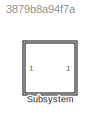
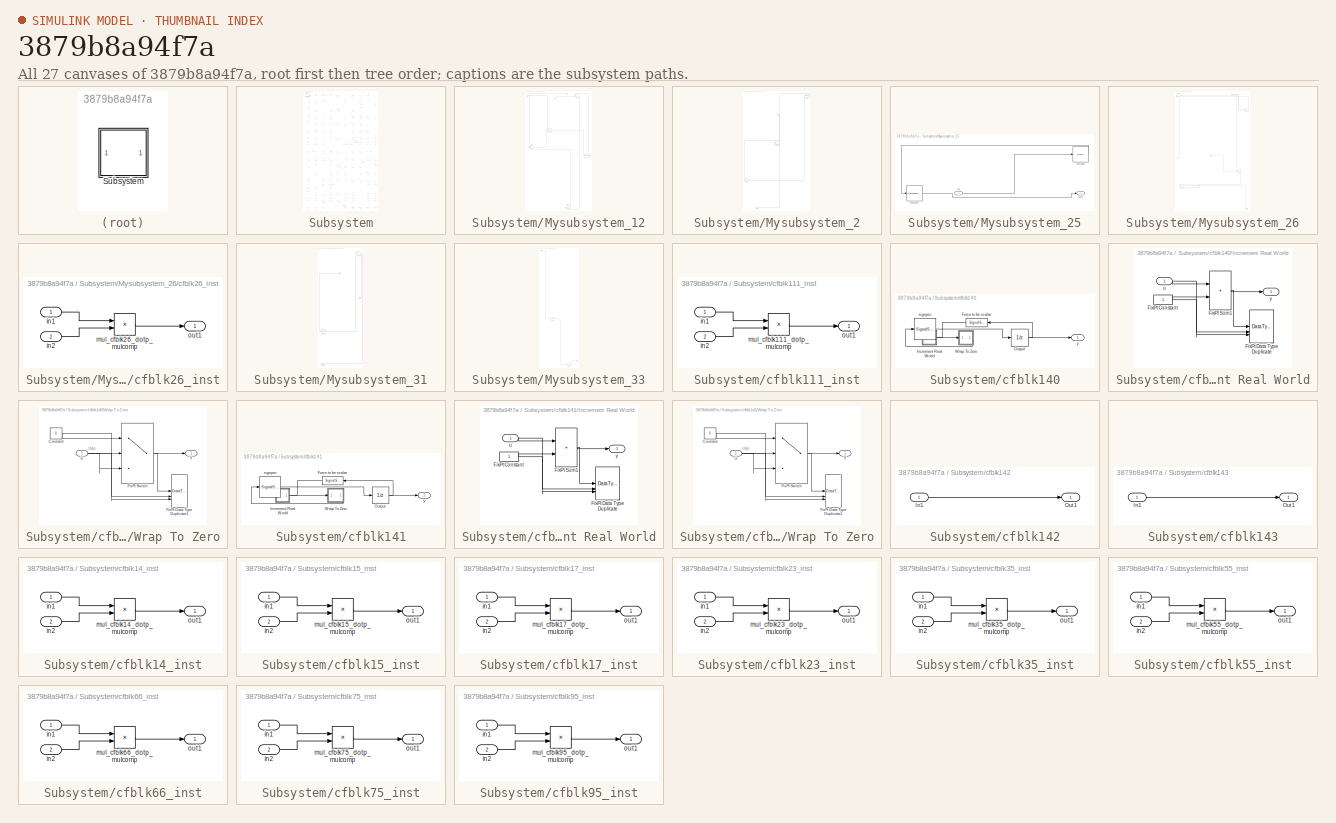
[diagram: thumbnail index - all 27 canvases of the model, root first then tree order]
MODEL slx_3879b8a94f7a
KIND model
CONFIG AbsTol = auto
CONFIG EnableMultiTasking = off
CONFIG FixedStep = auto
CONFIG MaxStep = auto
CONFIG MinStep = auto
CONFIG RelTol = 1e-3
CONFIG SampleTimeConstraint = Unconstrained
CONFIG SolverName = VariableStepAuto
CONFIG StartTime = 0.0
CONFIG StopTime = 10.0
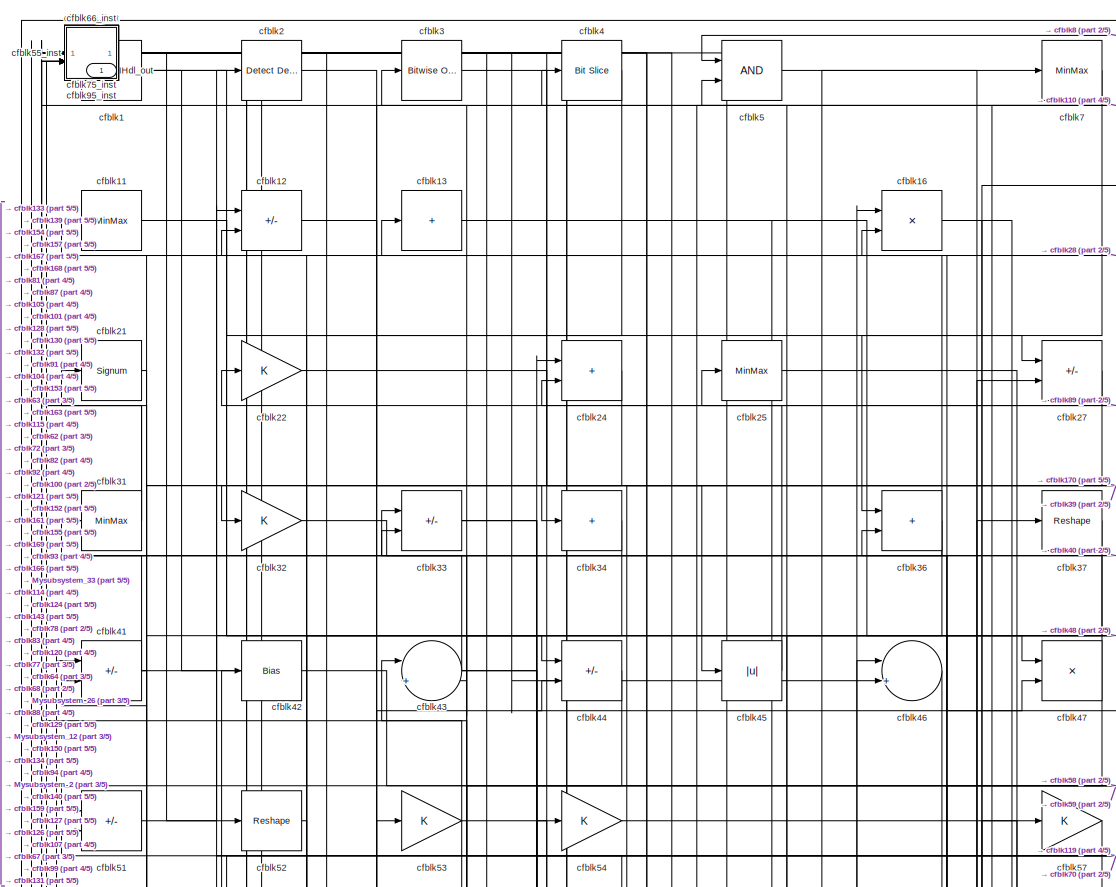
[diagram: Subsystem - part 1/5, top center region]
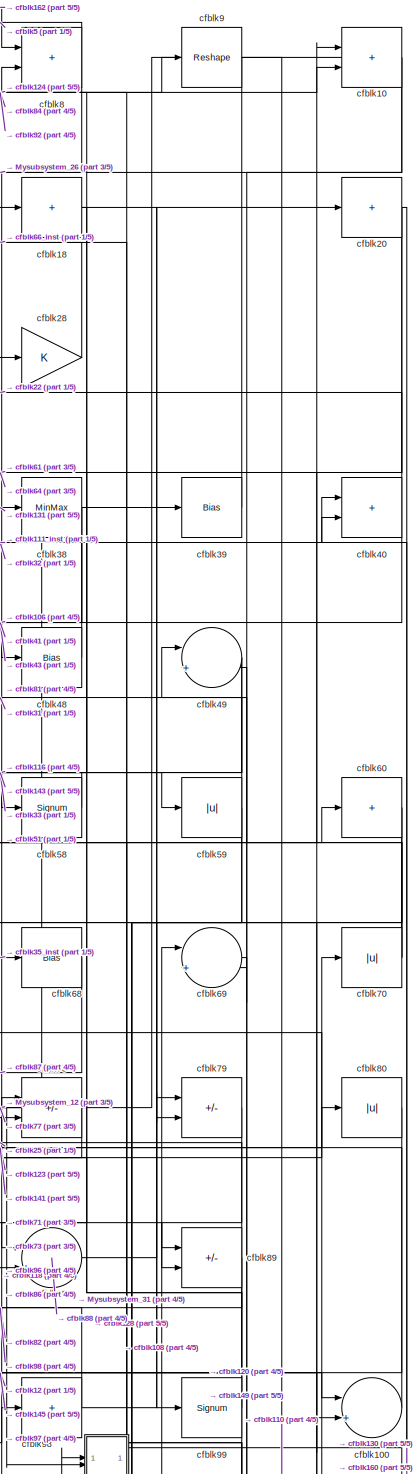
[diagram: Subsystem - part 2/5, top right region]
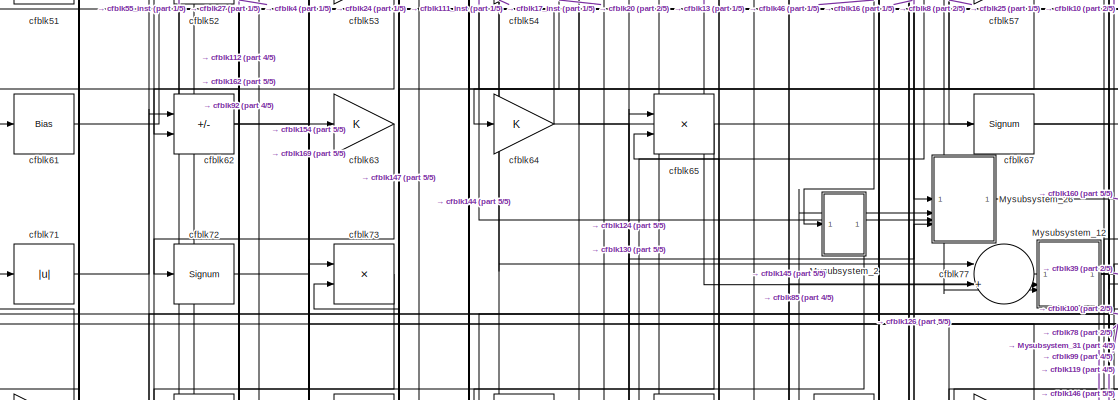
[diagram: Subsystem - part 3/5, central region]
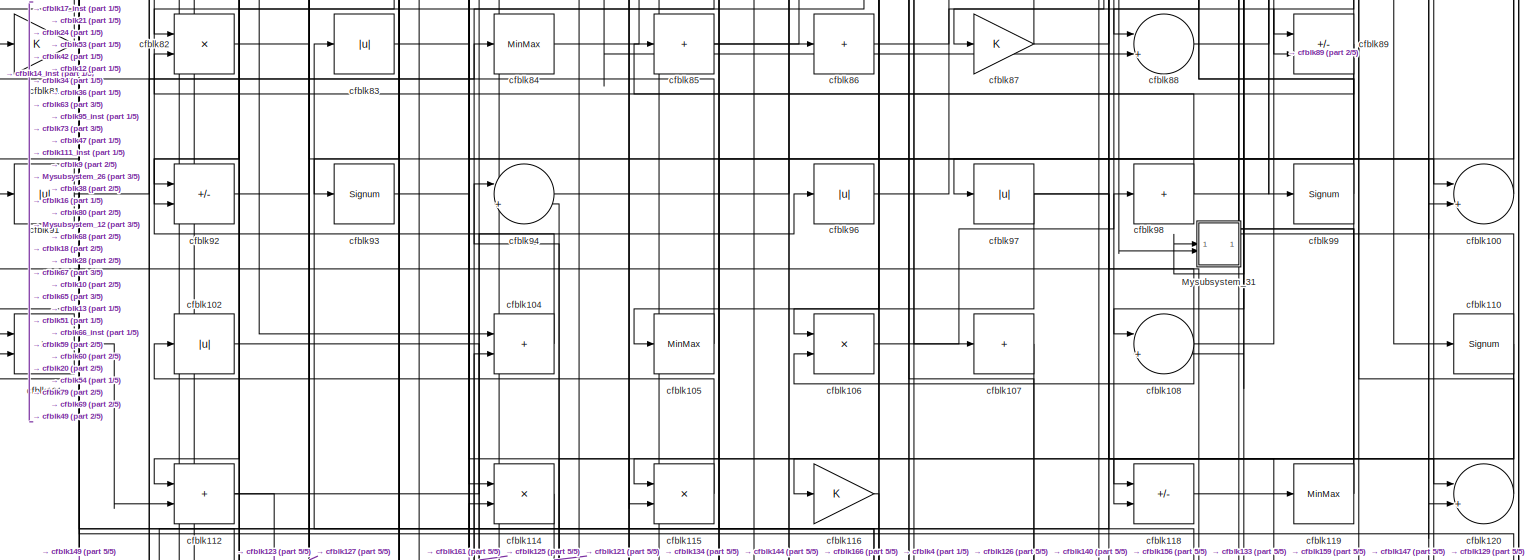
[diagram: Subsystem - part 4/5, full width, middle band]
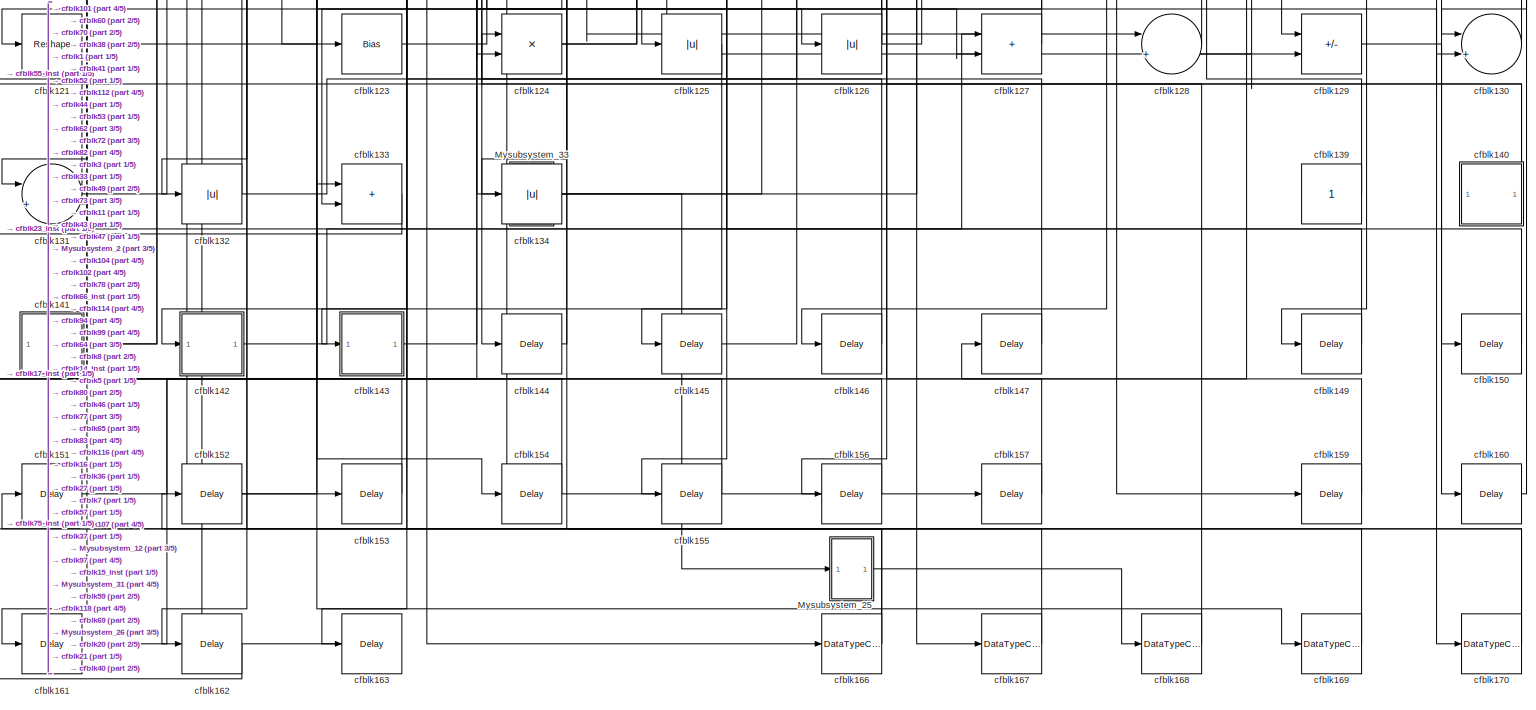
[diagram: Subsystem - part 5/5, full width, bottom band]
BLOCK [SubSystem] Subsystem
BLOCK [Outport] Subsystem/Hdl_out
  OutDataTypeStr = uint8
  SampleTime = 1
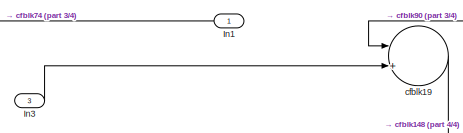
[diagram: Subsystem/Mysubsystem_12 - part 1/4, top center region]
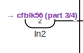
[diagram: Subsystem/Mysubsystem_12 - part 2/4, top left region]
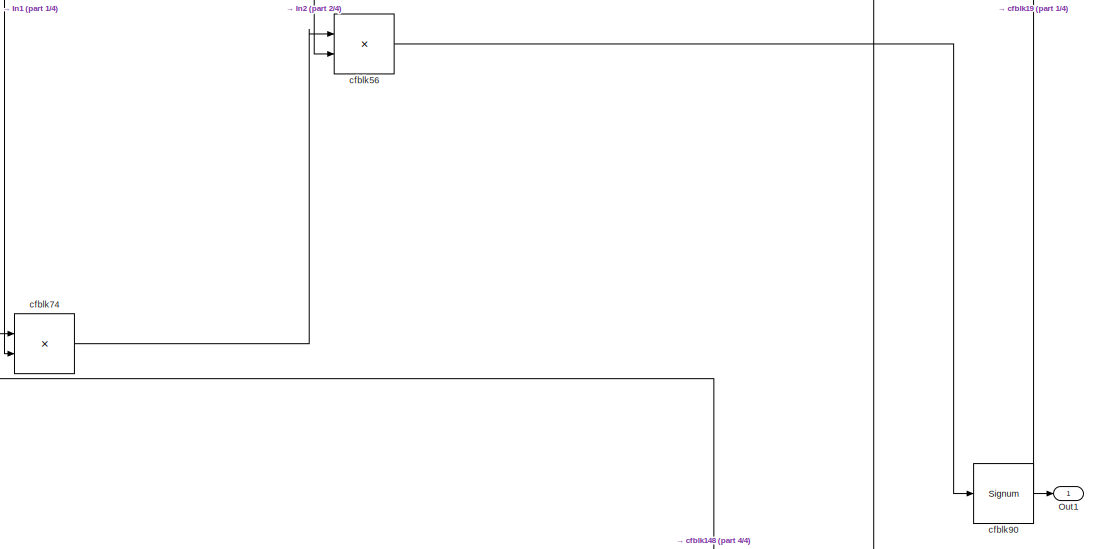
[diagram: Subsystem/Mysubsystem_12 - part 3/4, full width, middle band]
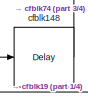
[diagram: Subsystem/Mysubsystem_12 - part 4/4, bottom center region]
BLOCK [SubSystem] Subsystem/Mysubsystem_12
BLOCK [Inport] Subsystem/Mysubsystem_12/In1
  OutDataTypeStr = uint8
  PortDimensions = 1
  SampleTime = 1
BLOCK [Inport] Subsystem/Mysubsystem_12/In2
  OutDataTypeStr = uint8
  Port = 2
  PortDimensions = 1
  SampleTime = 1
BLOCK [Inport] Subsystem/Mysubsystem_12/In3
  OutDataTypeStr = uint8
  Port = 3
  PortDimensions = 1
  SampleTime = 1
BLOCK [Outport] Subsystem/Mysubsystem_12/Out1
  SampleTime = 1
BLOCK [Delay] Subsystem/Mysubsystem_12/cfblk148
  InputPortMap = u0
  SampleTime = 1
BLOCK [Sum] Subsystem/Mysubsystem_12/cfblk19
  Inputs = |++
BLOCK [Product] Subsystem/Mysubsystem_12/cfblk56
  Inputs = */
  RndMeth = Zero
  SaturateOnIntegerOverflow = on
BLOCK [Product] Subsystem/Mysubsystem_12/cfblk74
  Inputs = */
  RndMeth = Zero
  SaturateOnIntegerOverflow = on
BLOCK [Signum] Subsystem/Mysubsystem_12/cfblk90
BLOCK [SubSystem] Subsystem/Mysubsystem_2
BLOCK [Inport] Subsystem/Mysubsystem_2/In1
  OutDataTypeStr = uint8
  PortDimensions = 1
  SampleTime = 1
BLOCK [Outport] Subsystem/Mysubsystem_2/Out1
  SampleTime = 1
BLOCK [Gain] Subsystem/Mysubsystem_2/cfblk113
BLOCK [Signum] Subsystem/Mysubsystem_2/cfblk29
BLOCK [Abs] Subsystem/Mysubsystem_2/cfblk76
  SaturateOnIntegerOverflow = off
BLOCK [SubSystem] Subsystem/Mysubsystem_25
BLOCK [Inport] Subsystem/Mysubsystem_25/In1
  OutDataTypeStr = uint8
  PortDimensions = 1
  SampleTime = 1
BLOCK [Outport] Subsystem/Mysubsystem_25/Out1
  SampleTime = 1
BLOCK [Delay] Subsystem/Mysubsystem_25/cfblk158
  InputPortMap = u0
  SampleTime = 1
BLOCK [DataTypeConversion] Subsystem/Mysubsystem_25/cfblk164
  OutDataTypeStr = uint8
  RndMeth = Floor
  SaturateOnIntegerOverflow = off
BLOCK [SubSystem] Subsystem/Mysubsystem_26
BLOCK [Inport] Subsystem/Mysubsystem_26/In1
  OutDataTypeStr = uint8
  PortDimensions = 1
  SampleTime = 1
BLOCK [Inport] Subsystem/Mysubsystem_26/In2
  OutDataTypeStr = uint8
  Port = 2
  PortDimensions = 1
  SampleTime = 1
BLOCK [Inport] Subsystem/Mysubsystem_26/In3
  OutDataTypeStr = uint8
  Port = 3
  PortDimensions = 1
  SampleTime = 1
BLOCK [Inport] Subsystem/Mysubsystem_26/In4
  OutDataTypeStr = uint8
  Port = 4
  PortDimensions = 1
  SampleTime = 1
BLOCK [Outport] Subsystem/Mysubsystem_26/Out1
  SampleTime = 1
BLOCK [Product] Subsystem/Mysubsystem_26/cfblk109
  Inputs = */
  RndMeth = Zero
  SaturateOnIntegerOverflow = on
BLOCK [Sum] Subsystem/Mysubsystem_26/cfblk122
  IconShape = rectangular
  Inputs = +-
BLOCK [SubSystem] Subsystem/Mysubsystem_26/cfblk26_inst
BLOCK [Inport] Subsystem/Mysubsystem_26/cfblk26_inst/in1
  OutDataTypeStr = uint8
  SampleTime = 1
BLOCK [Inport] Subsystem/Mysubsystem_26/cfblk26_inst/in2
  OutDataTypeStr = uint8
  Port = 2
  SampleTime = 1
BLOCK [Product] Subsystem/Mysubsystem_26/cfblk26_inst/mul_cfblk26_dotp_mulcomp
  Inputs = **
  OutDataTypeStr = uint16
  SampleTime = 1
BLOCK [Outport] Subsystem/Mysubsystem_26/cfblk26_inst/out1
  OutDataTypeStr = uint16
  SampleTime = 1
BLOCK [Product] Subsystem/Mysubsystem_26/cfblk30
  Inputs = */
  RndMeth = Zero
  SaturateOnIntegerOverflow = on
BLOCK [SubSystem] Subsystem/Mysubsystem_31
BLOCK [Inport] Subsystem/Mysubsystem_31/In1
  OutDataTypeStr = uint8
  PortDimensions = 1
  SampleTime = 1
BLOCK [Inport] Subsystem/Mysubsystem_31/In2
  OutDataTypeStr = uint8
  Port = 2
  PortDimensions = 1
  SampleTime = 1
BLOCK [Outport] Subsystem/Mysubsystem_31/Out1
  SampleTime = 1
BLOCK [Reshape] Subsystem/Mysubsystem_31/cfblk117
BLOCK [Sum] Subsystem/Mysubsystem_31/cfblk50
  Inputs = |++
BLOCK [SubSystem] Subsystem/Mysubsystem_33
BLOCK [Inport] Subsystem/Mysubsystem_33/In1
  OutDataTypeStr = uint8
  PortDimensions = 1
  SampleTime = 1
BLOCK [Outport] Subsystem/Mysubsystem_33/Out1
  SampleTime = 1
BLOCK [Bias] Subsystem/Mysubsystem_33/cfblk103
  Bias = 0.0
  SaturateOnIntegerOverflow = off
BLOCK [DataTypeConversion] Subsystem/Mysubsystem_33/cfblk165
  OutDataTypeStr = uint8
  RndMeth = Floor
  SaturateOnIntegerOverflow = off
BLOCK [Reference] Subsystem/cfblk1  REF=simulink/Logic and Bit
Operations/Detect
Increase
  LibrarySourceBlock = hdlsllib/Logic and Bit\nOperations/Detect\nIncrease
  SourceBlock = simulink/Logic and Bit\nOperations/Detect\nIncrease
  SourceType = Detect Increase
BLOCK [Sum] Subsystem/cfblk10
  IconShape = rectangular
  OutDataTypeStr = uint8
BLOCK [Sum] Subsystem/cfblk100
  Inputs = |++
  OutDataTypeStr = uint8
BLOCK [Product] Subsystem/cfblk101
  Inputs = */
  OutDataTypeStr = uint8
  RndMeth = Zero
  SaturateOnIntegerOverflow = on
BLOCK [Abs] Subsystem/cfblk102
  OutDataTypeStr = uint8
  SaturateOnIntegerOverflow = off
BLOCK [Sum] Subsystem/cfblk104
  IconShape = rectangular
  OutDataTypeStr = uint8
BLOCK [MinMax] Subsystem/cfblk105
  OutDataTypeStr = uint8
BLOCK [Product] Subsystem/cfblk106
  Inputs = */
  OutDataTypeStr = uint8
  RndMeth = Zero
  SaturateOnIntegerOverflow = on
BLOCK [Sum] Subsystem/cfblk107
  IconShape = rectangular
  Inputs = +
  OutDataTypeStr = uint8
BLOCK [Sum] Subsystem/cfblk108
  Inputs = |++
  OutDataTypeStr = uint8
BLOCK [MinMax] Subsystem/cfblk11
  OutDataTypeStr = uint8
BLOCK [Signum] Subsystem/cfblk110
BLOCK [SubSystem] Subsystem/cfblk111_inst
BLOCK [Inport] Subsystem/cfblk111_inst/in1
  OutDataTypeStr = uint8
  SampleTime = 1
BLOCK [Inport] Subsystem/cfblk111_inst/in2
  OutDataTypeStr = uint8
  Port = 2
  SampleTime = 1
BLOCK [Product] Subsystem/cfblk111_inst/mul_cfblk111_dotp_mulcomp
  Inputs = **
  OutDataTypeStr = uint8
  SampleTime = 1
BLOCK [Outport] Subsystem/cfblk111_inst/out1
  OutDataTypeStr = uint8
  SampleTime = 1
BLOCK [Sum] Subsystem/cfblk112
  IconShape = rectangular
  OutDataTypeStr = uint8
BLOCK [Product] Subsystem/cfblk114
  Inputs = */
  OutDataTypeStr = uint8
  RndMeth = Zero
  SaturateOnIntegerOverflow = on
BLOCK [Product] Subsystem/cfblk115
  Inputs = */
  OutDataTypeStr = uint8
  RndMeth = Zero
  SaturateOnIntegerOverflow = on
BLOCK [Gain] Subsystem/cfblk116
  OutDataTypeStr = uint8
BLOCK [Sum] Subsystem/cfblk118
  IconShape = rectangular
  Inputs = +-
  OutDataTypeStr = uint8
BLOCK [MinMax] Subsystem/cfblk119
  OutDataTypeStr = uint8
BLOCK [Sum] Subsystem/cfblk12
  IconShape = rectangular
  Inputs = +-
  OutDataTypeStr = uint8
BLOCK [Sum] Subsystem/cfblk120
  Inputs = |++
  OutDataTypeStr = uint8
BLOCK [Reshape] Subsystem/cfblk121
BLOCK [Bias] Subsystem/cfblk123
  Bias = 0.0
  SaturateOnIntegerOverflow = off
BLOCK [Product] Subsystem/cfblk124
  Inputs = */
  OutDataTypeStr = uint8
  RndMeth = Zero
  SaturateOnIntegerOverflow = on
BLOCK [Abs] Subsystem/cfblk125
  OutDataTypeStr = uint8
  SaturateOnIntegerOverflow = off
BLOCK [Abs] Subsystem/cfblk126
  OutDataTypeStr = uint8
  SaturateOnIntegerOverflow = off
BLOCK [Sum] Subsystem/cfblk127
  IconShape = rectangular
  OutDataTypeStr = uint8
BLOCK [Sum] Subsystem/cfblk128
  Inputs = |++
  OutDataTypeStr = uint8
BLOCK [Sum] Subsystem/cfblk129
  IconShape = rectangular
  Inputs = +-
  OutDataTypeStr = uint8
BLOCK [Sum] Subsystem/cfblk13
  IconShape = rectangular
  Inputs = +
  OutDataTypeStr = uint8
BLOCK [Sum] Subsystem/cfblk130
  Inputs = |++
  OutDataTypeStr = uint8
BLOCK [Sum] Subsystem/cfblk131
  Inputs = |++
  OutDataTypeStr = uint8
BLOCK [Abs] Subsystem/cfblk132
  OutDataTypeStr = uint8
  SaturateOnIntegerOverflow = off
BLOCK [Sum] Subsystem/cfblk133
  IconShape = rectangular
  OutDataTypeStr = uint8
BLOCK [Abs] Subsystem/cfblk134
  OutDataTypeStr = uint8
  SaturateOnIntegerOverflow = off
BLOCK [Constant] Subsystem/cfblk139
  OutDataTypeStr = uint8
  SampleTime = -1
BLOCK [SubSystem] Subsystem/cfblk140
BLOCK [SignalSpecification] Subsystem/cfblk140/Force to be scalar
  Dimensions = 1
  DisableCoverage = on
BLOCK [SubSystem] Subsystem/cfblk140/Increment Real World
BLOCK [Constant] Subsystem/cfblk140/Increment Real World/FixPt Constant
  DisableCoverage = on
  OutDataTypeStr = Inherit: Inherit via back propagation
  SampleTime = -1
BLOCK [DataTypeDuplicate] Subsystem/cfblk140/Increment Real World/FixPt Data Type Duplicate
  DisableCoverage = on
  NumInputPorts = 3
BLOCK [Sum] Subsystem/cfblk140/Increment Real World/FixPt Sum1
  IconShape = rectangular
  InputSameDT = on
  LockScale = on
  OutDataTypeStr = Inherit: Inherit via back propagation
BLOCK [Inport] Subsystem/cfblk140/Increment Real World/u
  OutDataTypeStr = uint16
  SampleTime = 1
BLOCK [Outport] Subsystem/cfblk140/Increment Real World/y
  SampleTime = 1
BLOCK [UnitDelay] Subsystem/cfblk140/Output
  HasFrameUpgradeWarning = on
  InitialCondition = 0.0
  SampleTime = tsamp
BLOCK [SubSystem] Subsystem/cfblk140/Wrap To Zero
BLOCK [Constant] Subsystem/cfblk140/Wrap To Zero/Constant
  DisableCoverage = on
  OutDataTypeStr = Inherit: Inherit via back propagation
  SampleTime = -1
  Value = 0
BLOCK [DataTypeDuplicate] Subsystem/cfblk140/Wrap To Zero/FixPt Data Type Duplicate1
  DisableCoverage = on
  NumInputPorts = 3
BLOCK [Switch] Subsystem/cfblk140/Wrap To Zero/FixPt Switch
  Criteria = u2 > Threshold
  InputSameDT = off
  OutDataTypeStr = Inherit: Inherit via back propagation
  SaturateOnIntegerOverflow = off
  Threshold = Threshold
  ZeroCross = off
BLOCK [Inport] Subsystem/cfblk140/Wrap To Zero/U
  OutDataTypeStr = uint16
  SampleTime = 1
BLOCK [Outport] Subsystem/cfblk140/Wrap To Zero/Y
  SampleTime = 1
BLOCK [SignalSpecification] Subsystem/cfblk140/sigspec
  Dimensions = 1
  OutDataTypeStr = uint16
BLOCK [Outport] Subsystem/cfblk140/y
  SampleTime = 1
BLOCK [SubSystem] Subsystem/cfblk141
BLOCK [SignalSpecification] Subsystem/cfblk141/Force to be scalar
  Dimensions = 1
  DisableCoverage = on
BLOCK [SubSystem] Subsystem/cfblk141/Increment Real World
BLOCK [Constant] Subsystem/cfblk141/Increment Real World/FixPt Constant
  DisableCoverage = on
  OutDataTypeStr = Inherit: Inherit via back propagation
  SampleTime = -1
BLOCK [DataTypeDuplicate] Subsystem/cfblk141/Increment Real World/FixPt Data Type Duplicate
  DisableCoverage = on
  NumInputPorts = 3
BLOCK [Sum] Subsystem/cfblk141/Increment Real World/FixPt Sum1
  IconShape = rectangular
  InputSameDT = on
  LockScale = on
  OutDataTypeStr = Inherit: Inherit via back propagation
BLOCK [Inport] Subsystem/cfblk141/Increment Real World/u
  OutDataTypeStr = uint8
  SampleTime = 1
BLOCK [Outport] Subsystem/cfblk141/Increment Real World/y
  SampleTime = 1
BLOCK [UnitDelay] Subsystem/cfblk141/Output
  HasFrameUpgradeWarning = on
  InitialCondition = 0.0
  SampleTime = tsamp
BLOCK [SubSystem] Subsystem/cfblk141/Wrap To Zero
BLOCK [Constant] Subsystem/cfblk141/Wrap To Zero/Constant
  DisableCoverage = on
  OutDataTypeStr = Inherit: Inherit via back propagation
  SampleTime = -1
  Value = 0
BLOCK [DataTypeDuplicate] Subsystem/cfblk141/Wrap To Zero/FixPt Data Type Duplicate1
  DisableCoverage = on
  NumInputPorts = 3
BLOCK [Switch] Subsystem/cfblk141/Wrap To Zero/FixPt Switch
  Criteria = u2 > Threshold
  InputSameDT = off
  OutDataTypeStr = Inherit: Inherit via back propagation
  SaturateOnIntegerOverflow = off
  Threshold = Threshold
  ZeroCross = off
BLOCK [Inport] Subsystem/cfblk141/Wrap To Zero/U
  OutDataTypeStr = uint8
  SampleTime = 1
BLOCK [Outport] Subsystem/cfblk141/Wrap To Zero/Y
  SampleTime = 1
BLOCK [SignalSpecification] Subsystem/cfblk141/sigspec
  Dimensions = 1
  OutDataTypeStr = uint8
BLOCK [Outport] Subsystem/cfblk141/y
  SampleTime = 1
BLOCK [SubSystem] Subsystem/cfblk142
BLOCK [Inport] Subsystem/cfblk142/In1
  OutDataTypeStr = uint8
  PortDimensions = 1
  SampleTime = 1
BLOCK [Outport] Subsystem/cfblk142/Out1
  SampleTime = 1
BLOCK [SubSystem] Subsystem/cfblk143
BLOCK [Inport] Subsystem/cfblk143/In1
  OutDataTypeStr = uint8
  PortDimensions = 1
  SampleTime = 1
BLOCK [Outport] Subsystem/cfblk143/Out1
  SampleTime = 1
BLOCK [Delay] Subsystem/cfblk144
  InputPortMap = u0
  SampleTime = 1
BLOCK [Delay] Subsystem/cfblk145
  InputPortMap = u0
  SampleTime = 1
BLOCK [Delay] Subsystem/cfblk146
  InputPortMap = u0
  SampleTime = 1
BLOCK [Delay] Subsystem/cfblk147
  InputPortMap = u0
  SampleTime = 1
BLOCK [Delay] Subsystem/cfblk149
  InputPortMap = u0
  SampleTime = 1
BLOCK [SubSystem] Subsystem/cfblk14_inst
BLOCK [Inport] Subsystem/cfblk14_inst/in1
  OutDataTypeStr = uint8
  SampleTime = 1
BLOCK [Inport] Subsystem/cfblk14_inst/in2
  OutDataTypeStr = uint8
  Port = 2
  SampleTime = 1
BLOCK [Product] Subsystem/cfblk14_inst/mul_cfblk14_dotp_mulcomp
  Inputs = **
  OutDataTypeStr = uint8
  SampleTime = 1
BLOCK [Outport] Subsystem/cfblk14_inst/out1
  OutDataTypeStr = uint8
  SampleTime = 1
BLOCK [Delay] Subsystem/cfblk150
  InputPortMap = u0
  SampleTime = 1
BLOCK [Delay] Subsystem/cfblk151
  InputPortMap = u0
  SampleTime = 1
BLOCK [Delay] Subsystem/cfblk152
  InputPortMap = u0
  SampleTime = 1
BLOCK [Delay] Subsystem/cfblk153
  InputPortMap = u0
  SampleTime = 1
BLOCK [Delay] Subsystem/cfblk154
  InputPortMap = u0
  SampleTime = 1
BLOCK [Delay] Subsystem/cfblk155
  InputPortMap = u0
  SampleTime = 1
BLOCK [Delay] Subsystem/cfblk156
  InputPortMap = u0
  SampleTime = 1
BLOCK [Delay] Subsystem/cfblk157
  InputPortMap = u0
  SampleTime = 1
BLOCK [Delay] Subsystem/cfblk159
  InputPortMap = u0
  SampleTime = 1
BLOCK [SubSystem] Subsystem/cfblk15_inst
BLOCK [Inport] Subsystem/cfblk15_inst/in1
  OutDataTypeStr = uint8
  SampleTime = 1
BLOCK [Inport] Subsystem/cfblk15_inst/in2
  OutDataTypeStr = uint8
  Port = 2
  SampleTime = 1
BLOCK [Product] Subsystem/cfblk15_inst/mul_cfblk15_dotp_mulcomp
  Inputs = **
  OutDataTypeStr = uint8
  SampleTime = 1
BLOCK [Outport] Subsystem/cfblk15_inst/out1
  OutDataTypeStr = uint8
  SampleTime = 1
BLOCK [Product] Subsystem/cfblk16
  Inputs = */
  OutDataTypeStr = uint8
  RndMeth = Zero
  SaturateOnIntegerOverflow = on
BLOCK [Delay] Subsystem/cfblk160
  InputPortMap = u0
  SampleTime = 1
BLOCK [Delay] Subsystem/cfblk161
  InputPortMap = u0
  SampleTime = 1
BLOCK [Delay] Subsystem/cfblk162
  InputPortMap = u0
  SampleTime = 1
BLOCK [Delay] Subsystem/cfblk163
  InputPortMap = u0
  SampleTime = 1
BLOCK [DataTypeConversion] Subsystem/cfblk166
  OutDataTypeStr = uint8
  RndMeth = Floor
  SaturateOnIntegerOverflow = off
BLOCK [DataTypeConversion] Subsystem/cfblk167
  OutDataTypeStr = uint8
  RndMeth = Floor
  SaturateOnIntegerOverflow = off
BLOCK [DataTypeConversion] Subsystem/cfblk168
  OutDataTypeStr = uint8
  RndMeth = Floor
  SaturateOnIntegerOverflow = off
BLOCK [DataTypeConversion] Subsystem/cfblk169
  OutDataTypeStr = uint8
  RndMeth = Floor
  SaturateOnIntegerOverflow = off
BLOCK [DataTypeConversion] Subsystem/cfblk170
  OutDataTypeStr = uint8
  RndMeth = Floor
  SaturateOnIntegerOverflow = off
BLOCK [SubSystem] Subsystem/cfblk17_inst
BLOCK [Inport] Subsystem/cfblk17_inst/in1
  OutDataTypeStr = uint8
  SampleTime = 1
BLOCK [Inport] Subsystem/cfblk17_inst/in2
  OutDataTypeStr = uint8
  Port = 2
  SampleTime = 1
BLOCK [Product] Subsystem/cfblk17_inst/mul_cfblk17_dotp_mulcomp
  Inputs = **
  OutDataTypeStr = uint8
  SampleTime = 1
BLOCK [Outport] Subsystem/cfblk17_inst/out1
  OutDataTypeStr = uint8
  SampleTime = 1
BLOCK [Sum] Subsystem/cfblk18
  IconShape = rectangular
  Inputs = +
  OutDataTypeStr = uint8
BLOCK [Reference] Subsystem/cfblk2  REF=simulink/Logic and Bit
Operations/Detect
Decrease
  LibrarySourceBlock = hdlsllib/Logic and Bit\nOperations/Detect\nDecrease
  SourceBlock = simulink/Logic and Bit\nOperations/Detect\nDecrease
  SourceType = Detect Decrease
BLOCK [Sum] Subsystem/cfblk20
  IconShape = rectangular
  Inputs = +
  OutDataTypeStr = uint8
BLOCK [Signum] Subsystem/cfblk21
BLOCK [Gain] Subsystem/cfblk22
  OutDataTypeStr = uint8
BLOCK [SubSystem] Subsystem/cfblk23_inst
BLOCK [Inport] Subsystem/cfblk23_inst/in1
  OutDataTypeStr = uint8
  SampleTime = 1
BLOCK [Inport] Subsystem/cfblk23_inst/in2
  OutDataTypeStr = uint8
  Port = 2
  SampleTime = 1
BLOCK [Product] Subsystem/cfblk23_inst/mul_cfblk23_dotp_mulcomp
  Inputs = **
  OutDataTypeStr = uint8
  SampleTime = 1
BLOCK [Outport] Subsystem/cfblk23_inst/out1
  OutDataTypeStr = uint8
  SampleTime = 1
BLOCK [Sum] Subsystem/cfblk24
  IconShape = rectangular
  OutDataTypeStr = uint8
BLOCK [MinMax] Subsystem/cfblk25
  OutDataTypeStr = uint8
BLOCK [Sum] Subsystem/cfblk27
  IconShape = rectangular
  Inputs = +-
  OutDataTypeStr = uint8
BLOCK [Gain] Subsystem/cfblk28
  OutDataTypeStr = uint8
BLOCK [Reference] Subsystem/cfblk3  REF=simulink/Logic and Bit
Operations/Bitwise
Operator
  LibrarySourceBlock = hdlsllib/Logic and Bit\nOperations/Bitwise\nOperator
  SourceBlock = simulink/Logic and Bit\nOperations/Bitwise\nOperator
  SourceType = Bitwise Operator
BLOCK [MinMax] Subsystem/cfblk31
  OutDataTypeStr = uint8
BLOCK [Gain] Subsystem/cfblk32
  OutDataTypeStr = uint8
BLOCK [Sum] Subsystem/cfblk33
  IconShape = rectangular
  Inputs = +-
  OutDataTypeStr = uint8
BLOCK [Sum] Subsystem/cfblk34
  IconShape = rectangular
  Inputs = +
  OutDataTypeStr = uint8
BLOCK [SubSystem] Subsystem/cfblk35_inst
BLOCK [Inport] Subsystem/cfblk35_inst/in1
  OutDataTypeStr = uint8
  SampleTime = 1
BLOCK [Inport] Subsystem/cfblk35_inst/in2
  OutDataTypeStr = uint8
  Port = 2
  SampleTime = 1
BLOCK [Product] Subsystem/cfblk35_inst/mul_cfblk35_dotp_mulcomp
  Inputs = **
  OutDataTypeStr = uint8
  SampleTime = 1
BLOCK [Outport] Subsystem/cfblk35_inst/out1
  OutDataTypeStr = uint8
  SampleTime = 1
BLOCK [Sum] Subsystem/cfblk36
  IconShape = rectangular
  OutDataTypeStr = uint8
BLOCK [Reshape] Subsystem/cfblk37
BLOCK [MinMax] Subsystem/cfblk38
  OutDataTypeStr = uint8
BLOCK [Bias] Subsystem/cfblk39
  Bias = 0.0
  SaturateOnIntegerOverflow = off
BLOCK [Reference] Subsystem/cfblk4  REF=hdlsllib/Logic and Bit
Operations/Bit Slice
  SourceBlock = hdlsllib/Logic and Bit\nOperations/Bit Slice
  SourceType = Bit Slice
BLOCK [Sum] Subsystem/cfblk40
  IconShape = rectangular
  OutDataTypeStr = uint8
BLOCK [Sum] Subsystem/cfblk41
  IconShape = rectangular
  Inputs = +-
  OutDataTypeStr = uint8
BLOCK [Bias] Subsystem/cfblk42
  Bias = 0.0
  SaturateOnIntegerOverflow = off
BLOCK [Sum] Subsystem/cfblk43
  Inputs = |++
  OutDataTypeStr = uint8
BLOCK [Sum] Subsystem/cfblk44
  IconShape = rectangular
  Inputs = +-
  OutDataTypeStr = uint8
BLOCK [Abs] Subsystem/cfblk45
  OutDataTypeStr = uint8
  SaturateOnIntegerOverflow = off
BLOCK [Sum] Subsystem/cfblk46
  Inputs = |++
  OutDataTypeStr = uint8
BLOCK [Product] Subsystem/cfblk47
  Inputs = */
  OutDataTypeStr = uint8
  RndMeth = Zero
  SaturateOnIntegerOverflow = on
BLOCK [Bias] Subsystem/cfblk48
  Bias = 0.0
  SaturateOnIntegerOverflow = off
BLOCK [Sum] Subsystem/cfblk49
  Inputs = |++
  OutDataTypeStr = uint8
BLOCK [Logic] Subsystem/cfblk5
  AllPortsSameDT = off
  OutDataTypeStr = boolean
BLOCK [Sum] Subsystem/cfblk51
  IconShape = rectangular
  Inputs = +-
  OutDataTypeStr = uint8
BLOCK [Reshape] Subsystem/cfblk52
BLOCK [Gain] Subsystem/cfblk53
  OutDataTypeStr = uint8
BLOCK [Gain] Subsystem/cfblk54
  OutDataTypeStr = uint8
BLOCK [SubSystem] Subsystem/cfblk55_inst
BLOCK [Inport] Subsystem/cfblk55_inst/in1
  OutDataTypeStr = uint8
  SampleTime = 1
BLOCK [Inport] Subsystem/cfblk55_inst/in2
  OutDataTypeStr = uint8
  Port = 2
  SampleTime = 1
BLOCK [Product] Subsystem/cfblk55_inst/mul_cfblk55_dotp_mulcomp
  Inputs = **
  OutDataTypeStr = uint8
  SampleTime = 1
BLOCK [Outport] Subsystem/cfblk55_inst/out1
  OutDataTypeStr = uint8
  SampleTime = 1
BLOCK [Gain] Subsystem/cfblk57
  OutDataTypeStr = uint8
BLOCK [Signum] Subsystem/cfblk58
BLOCK [Abs] Subsystem/cfblk59
  OutDataTypeStr = uint8
  SaturateOnIntegerOverflow = off
BLOCK [Sum] Subsystem/cfblk60
  IconShape = rectangular
  Inputs = +
  OutDataTypeStr = uint8
BLOCK [Bias] Subsystem/cfblk61
  Bias = 0.0
  SaturateOnIntegerOverflow = off
BLOCK [Sum] Subsystem/cfblk62
  IconShape = rectangular
  Inputs = +-
  OutDataTypeStr = uint8
BLOCK [Gain] Subsystem/cfblk63
  OutDataTypeStr = uint8
BLOCK [Gain] Subsystem/cfblk64
  OutDataTypeStr = uint8
BLOCK [Product] Subsystem/cfblk65
  Inputs = */
  OutDataTypeStr = uint8
  RndMeth = Zero
  SaturateOnIntegerOverflow = on
BLOCK [SubSystem] Subsystem/cfblk66_inst
BLOCK [Inport] Subsystem/cfblk66_inst/in1
  OutDataTypeStr = uint8
  SampleTime = 1
BLOCK [Inport] Subsystem/cfblk66_inst/in2
  OutDataTypeStr = uint8
  Port = 2
  SampleTime = 1
BLOCK [Product] Subsystem/cfblk66_inst/mul_cfblk66_dotp_mulcomp
  Inputs = **
  OutDataTypeStr = uint8
  SampleTime = 1
BLOCK [Outport] Subsystem/cfblk66_inst/out1
  OutDataTypeStr = uint8
  SampleTime = 1
BLOCK [Signum] Subsystem/cfblk67
BLOCK [Bias] Subsystem/cfblk68
  Bias = 0.0
  SaturateOnIntegerOverflow = off
BLOCK [Sum] Subsystem/cfblk69
  Inputs = |++
  OutDataTypeStr = uint8
BLOCK [MinMax] Subsystem/cfblk7
  OutDataTypeStr = uint8
BLOCK [Abs] Subsystem/cfblk70
  OutDataTypeStr = uint8
  SaturateOnIntegerOverflow = off
BLOCK [Abs] Subsystem/cfblk71
  OutDataTypeStr = uint8
  SaturateOnIntegerOverflow = off
BLOCK [Signum] Subsystem/cfblk72
BLOCK [Product] Subsystem/cfblk73
  Inputs = */
  OutDataTypeStr = uint8
  RndMeth = Zero
  SaturateOnIntegerOverflow = on
BLOCK [SubSystem] Subsystem/cfblk75_inst
BLOCK [Inport] Subsystem/cfblk75_inst/in1
  OutDataTypeStr = uint8
  SampleTime = 1
BLOCK [Inport] Subsystem/cfblk75_inst/in2
  OutDataTypeStr = uint8
  Port = 2
  SampleTime = 1
BLOCK [Product] Subsystem/cfblk75_inst/mul_cfblk75_dotp_mulcomp
  Inputs = **
  OutDataTypeStr = uint8
  SampleTime = 1
BLOCK [Outport] Subsystem/cfblk75_inst/out1
  OutDataTypeStr = uint8
  SampleTime = 1
BLOCK [Sum] Subsystem/cfblk77
  Inputs = |++
  OutDataTypeStr = uint8
BLOCK [Sum] Subsystem/cfblk78
  IconShape = rectangular
  Inputs = +-
  OutDataTypeStr = uint8
BLOCK [Sum] Subsystem/cfblk79
  IconShape = rectangular
  Inputs = +-
  OutDataTypeStr = uint8
BLOCK [Sum] Subsystem/cfblk8
  IconShape = rectangular
  OutDataTypeStr = uint8
BLOCK [Abs] Subsystem/cfblk80
  OutDataTypeStr = uint8
  SaturateOnIntegerOverflow = off
BLOCK [Gain] Subsystem/cfblk81
  OutDataTypeStr = uint8
BLOCK [Product] Subsystem/cfblk82
  Inputs = */
  OutDataTypeStr = uint8
  RndMeth = Zero
  SaturateOnIntegerOverflow = on
BLOCK [Abs] Subsystem/cfblk83
  OutDataTypeStr = uint8
  SaturateOnIntegerOverflow = off
BLOCK [MinMax] Subsystem/cfblk84
  OutDataTypeStr = uint8
BLOCK [Sum] Subsystem/cfblk85
  IconShape = rectangular
  Inputs = +
  OutDataTypeStr = uint8
BLOCK [Sum] Subsystem/cfblk86
  IconShape = rectangular
  Inputs = +
  OutDataTypeStr = uint8
BLOCK [Gain] Subsystem/cfblk87
  OutDataTypeStr = uint8
BLOCK [Sum] Subsystem/cfblk88
  Inputs = |++
  OutDataTypeStr = uint8
BLOCK [Sum] Subsystem/cfblk89
  IconShape = rectangular
  Inputs = +-
  OutDataTypeStr = uint8
BLOCK [Reshape] Subsystem/cfblk9
BLOCK [Abs] Subsystem/cfblk91
  OutDataTypeStr = uint8
  SaturateOnIntegerOverflow = off
BLOCK [Sum] Subsystem/cfblk92
  IconShape = rectangular
  Inputs = +-
  OutDataTypeStr = uint8
BLOCK [Signum] Subsystem/cfblk93
BLOCK [Sum] Subsystem/cfblk94
  Inputs = |++
  OutDataTypeStr = uint8
BLOCK [SubSystem] Subsystem/cfblk95_inst
BLOCK [Inport] Subsystem/cfblk95_inst/in1
  OutDataTypeStr = uint8
  SampleTime = 1
BLOCK [Inport] Subsystem/cfblk95_inst/in2
  OutDataTypeStr = uint8
  Port = 2
  SampleTime = 1
BLOCK [Product] Subsystem/cfblk95_inst/mul_cfblk95_dotp_mulcomp
  Inputs = **
  OutDataTypeStr = uint8
  SampleTime = 1
BLOCK [Outport] Subsystem/cfblk95_inst/out1
  OutDataTypeStr = uint8
  SampleTime = 1
BLOCK [Abs] Subsystem/cfblk96
  OutDataTypeStr = uint8
  SaturateOnIntegerOverflow = off
BLOCK [Abs] Subsystem/cfblk97
  OutDataTypeStr = uint8
  SaturateOnIntegerOverflow = off
BLOCK [Sum] Subsystem/cfblk98
  IconShape = rectangular
  Inputs = +
  OutDataTypeStr = uint8
BLOCK [Signum] Subsystem/cfblk99
ANNOTATION Subsystem/cfblk140/Wrap To Zero: U(k)
ANNOTATION Subsystem/cfblk141/Wrap To Zero: U(k)
LINE Subsystem/Mysubsystem_12/In1:1 -> Subsystem/Mysubsystem_12/cfblk74:2
LINE Subsystem/Mysubsystem_12/In2:1 -> Subsystem/Mysubsystem_12/cfblk56:2
LINE Subsystem/Mysubsystem_12/In3:1 -> Subsystem/Mysubsystem_12/cfblk19:2
LINE Subsystem/Mysubsystem_12/cfblk148:1 -> Subsystem/Mysubsystem_12/cfblk74:1
LINE Subsystem/Mysubsystem_12/cfblk19:1 -> Subsystem/Mysubsystem_12/cfblk148:1
LINE Subsystem/Mysubsystem_12/cfblk56:1 -> Subsystem/Mysubsystem_12/cfblk90:1
LINE Subsystem/Mysubsystem_12/cfblk74:1 -> Subsystem/Mysubsystem_12/cfblk56:1
NET Subsystem/Mysubsystem_12/cfblk90:1 -> Subsystem/Mysubsystem_12/Out1:1, Subsystem/Mysubsystem_12/cfblk19:1
NET Subsystem/Mysubsystem_12:1 -> Subsystem/Mysubsystem_31:2, Subsystem/cfblk146:1
LINE Subsystem/Mysubsystem_2/In1:1 -> Subsystem/Mysubsystem_2/cfblk113:1
LINE Subsystem/Mysubsystem_2/cfblk113:1 -> Subsystem/Mysubsystem_2/cfblk29:1
LINE Subsystem/Mysubsystem_2/cfblk29:1 -> Subsystem/Mysubsystem_2/cfblk76:1
LINE Subsystem/Mysubsystem_2/cfblk76:1 -> Subsystem/Mysubsystem_2/Out1:1
LINE Subsystem/Mysubsystem_25/In1:1 -> Subsystem/Mysubsystem_25/cfblk158:1
LINE Subsystem/Mysubsystem_25/cfblk158:1 -> Subsystem/Mysubsystem_25/cfblk164:1
LINE Subsystem/Mysubsystem_25/cfblk164:1 -> Subsystem/Mysubsystem_25/Out1:1
LINE Subsystem/Mysubsystem_25:1 -> Subsystem/cfblk168:1
NET Subsystem/Mysubsystem_26/In1:1 -> Subsystem/Mysubsystem_26/cfblk30:1, Subsystem/Mysubsystem_26/cfblk30:2
LINE Subsystem/Mysubsystem_26/In2:1 -> Subsystem/Mysubsystem_26/cfblk109:2
LINE Subsystem/Mysubsystem_26/In3:1 -> Subsystem/Mysubsystem_26/cfblk26_inst:1
LINE Subsystem/Mysubsystem_26/In4:1 -> Subsystem/Mysubsystem_26/cfblk122:2
LINE Subsystem/Mysubsystem_26/cfblk109:1 -> Subsystem/Mysubsystem_26/cfblk122:1
LINE Subsystem/Mysubsystem_26/cfblk122:1 -> Subsystem/Mysubsystem_26/Out1:1
LINE Subsystem/Mysubsystem_26/cfblk26_inst/in1:1 -> Subsystem/Mysubsystem_26/cfblk26_inst/mul_cfblk26_dotp_mulcomp:1
LINE Subsystem/Mysubsystem_26/cfblk26_inst/in2:1 -> Subsystem/Mysubsystem_26/cfblk26_inst/mul_cfblk26_dotp_mulcomp:2
LINE Subsystem/Mysubsystem_26/cfblk26_inst/mul_cfblk26_dotp_mulcomp:1 -> Subsystem/Mysubsystem_26/cfblk26_inst/out1:1
LINE Subsystem/Mysubsystem_26/cfblk26_inst:1 -> Subsystem/Mysubsystem_26/cfblk109:1
LINE Subsystem/Mysubsystem_26/cfblk30:1 -> Subsystem/Mysubsystem_26/cfblk26_inst:2
LINE Subsystem/Mysubsystem_26:1 -> Subsystem/cfblk160:1
LINE Subsystem/Mysubsystem_2:1 -> Subsystem/cfblk144:1
LINE Subsystem/Mysubsystem_31/In1:1 -> Subsystem/Mysubsystem_31/cfblk117:1
LINE Subsystem/Mysubsystem_31/In2:1 -> Subsystem/Mysubsystem_31/cfblk50:2
LINE Subsystem/Mysubsystem_31/cfblk117:1 -> Subsystem/Mysubsystem_31/cfblk50:1
LINE Subsystem/Mysubsystem_31/cfblk50:1 -> Subsystem/Mysubsystem_31/Out1:1
LINE Subsystem/Mysubsystem_31:1 -> Subsystem/cfblk147:1
LINE Subsystem/Mysubsystem_33/In1:1 -> Subsystem/Mysubsystem_33/cfblk103:1
LINE Subsystem/Mysubsystem_33/cfblk103:1 -> Subsystem/Mysubsystem_33/cfblk165:1
LINE Subsystem/Mysubsystem_33/cfblk165:1 -> Subsystem/Mysubsystem_33/Out1:1
LINE Subsystem/Mysubsystem_33:1 -> Subsystem/Mysubsystem_25:1
LINE Subsystem/cfblk100:1 -> Subsystem/cfblk71:1
LINE Subsystem/cfblk101:1 -> Subsystem/cfblk112:2
LINE Subsystem/cfblk102:1 -> Subsystem/cfblk125:1
LINE Subsystem/cfblk104:1 -> Subsystem/cfblk42:1
LINE Subsystem/cfblk105:1 -> Subsystem/cfblk14_inst:2
LINE Subsystem/cfblk106:1 -> Subsystem/cfblk98:1
LINE Subsystem/cfblk107:1 -> Subsystem/cfblk133:2
NET Subsystem/cfblk108:1 -> Subsystem/cfblk106:2, Subsystem/cfblk18:1, Subsystem/cfblk69:1
NET Subsystem/cfblk10:1 -> Subsystem/Mysubsystem_12:1, Subsystem/cfblk118:2, Subsystem/cfblk69:2
NET Subsystem/cfblk110:1 -> Subsystem/cfblk115:1, Subsystem/cfblk118:1, Subsystem/cfblk66_inst:2
LINE Subsystem/cfblk111_inst/in1:1 -> Subsystem/cfblk111_inst/mul_cfblk111_dotp_mulcomp:1
LINE Subsystem/cfblk111_inst/in2:1 -> Subsystem/cfblk111_inst/mul_cfblk111_dotp_mulcomp:2
LINE Subsystem/cfblk111_inst/mul_cfblk111_dotp_mulcomp:1 -> Subsystem/cfblk111_inst/out1:1
NET Subsystem/cfblk111_inst:1 -> Subsystem/Mysubsystem_26:3, Subsystem/cfblk88:2
NET Subsystem/cfblk112:1 -> Subsystem/cfblk123:1, Subsystem/cfblk96:1
LINE Subsystem/cfblk114:1 -> Subsystem/cfblk121:1
LINE Subsystem/cfblk115:1 -> Subsystem/cfblk12:2
LINE Subsystem/cfblk116:1 -> Subsystem/cfblk156:1
LINE Subsystem/cfblk118:1 -> Subsystem/cfblk129:1
NET Subsystem/cfblk119:1 -> Subsystem/cfblk13:1, Subsystem/cfblk51:2
NET Subsystem/cfblk11:1 -> Subsystem/Mysubsystem_33:1, Subsystem/cfblk27:1
LINE Subsystem/cfblk120:1 -> Subsystem/cfblk49:1
LINE Subsystem/cfblk121:1 -> Subsystem/cfblk53:1
LINE Subsystem/cfblk123:1 -> Subsystem/cfblk78:1
NET Subsystem/cfblk124:1 -> Subsystem/Mysubsystem_26:4, Subsystem/cfblk8:2
LINE Subsystem/cfblk125:1 -> Subsystem/cfblk142:1
NET Subsystem/cfblk126:1 -> Subsystem/cfblk57:1, Subsystem/cfblk65:2, Subsystem/cfblk83:1
LINE Subsystem/cfblk127:1 -> Subsystem/cfblk37:1
LINE Subsystem/cfblk128:1 -> Subsystem/cfblk11:1
LINE Subsystem/cfblk129:1 -> Subsystem/cfblk150:1
LINE Subsystem/cfblk12:1 -> Subsystem/cfblk100:1
LINE Subsystem/cfblk130:1 -> Subsystem/cfblk21:1
NET Subsystem/cfblk131:1 -> Subsystem/cfblk38:1, Subsystem/cfblk55_inst:2
NET Subsystem/cfblk132:1 -> Subsystem/cfblk41:2, Subsystem/cfblk46:1
LINE Subsystem/cfblk133:1 -> Subsystem/cfblk23_inst:1
NET Subsystem/cfblk134:1 -> Subsystem/cfblk27:2, Subsystem/cfblk7:1
LINE Subsystem/cfblk139:1 -> Subsystem/cfblk15_inst:1
NET Subsystem/cfblk13:1 -> Subsystem/Mysubsystem_12:2, Subsystem/cfblk47:1
NET Subsystem/cfblk140:1 -> Subsystem/cfblk104:2, Subsystem/cfblk16:2
NET Subsystem/cfblk141:1 -> Subsystem/cfblk60:1, Subsystem/cfblk70:1
LINE Subsystem/cfblk142/In1:1 -> Subsystem/cfblk142/Out1:1
LINE Subsystem/cfblk142:1 -> Subsystem/cfblk127:1
LINE Subsystem/cfblk143/In1:1 -> Subsystem/cfblk143/Out1:1
LINE Subsystem/cfblk143:1 -> Subsystem/cfblk47:2
LINE Subsystem/cfblk144:1 -> Subsystem/cfblk94:2
LINE Subsystem/cfblk145:1 -> Subsystem/cfblk77:2
LINE Subsystem/cfblk146:1 -> Subsystem/cfblk124:1
LINE Subsystem/cfblk147:1 -> Subsystem/cfblk73:2
LINE Subsystem/cfblk149:1 -> Subsystem/cfblk101:2
LINE Subsystem/cfblk14_inst/in1:1 -> Subsystem/cfblk14_inst/mul_cfblk14_dotp_mulcomp:1
LINE Subsystem/cfblk14_inst/in2:1 -> Subsystem/cfblk14_inst/mul_cfblk14_dotp_mulcomp:2
LINE Subsystem/cfblk14_inst/mul_cfblk14_dotp_mulcomp:1 -> Subsystem/cfblk14_inst/out1:1
LINE Subsystem/cfblk14_inst:1 -> Subsystem/cfblk129:2
LINE Subsystem/cfblk150:1 -> Subsystem/cfblk5:2
LINE Subsystem/cfblk151:1 -> Subsystem/cfblk133:1
LINE Subsystem/cfblk152:1 -> Subsystem/cfblk44:2
LINE Subsystem/cfblk153:1 -> Subsystem/cfblk41:1
LINE Subsystem/cfblk154:1 -> Subsystem/cfblk17_inst:2
LINE Subsystem/cfblk155:1 -> Subsystem/cfblk33:1
LINE Subsystem/cfblk156:1 -> Subsystem/cfblk131:2
LINE Subsystem/cfblk157:1 -> Subsystem/cfblk23_inst:2
LINE Subsystem/cfblk159:1 -> Subsystem/cfblk36:2
LINE Subsystem/cfblk15_inst/in1:1 -> Subsystem/cfblk15_inst/mul_cfblk15_dotp_mulcomp:1
LINE Subsystem/cfblk15_inst/in2:1 -> Subsystem/cfblk15_inst/mul_cfblk15_dotp_mulcomp:2
LINE Subsystem/cfblk15_inst/mul_cfblk15_dotp_mulcomp:1 -> Subsystem/cfblk15_inst/out1:1
NET Subsystem/cfblk15_inst:1 -> Subsystem/cfblk153:1, Subsystem/cfblk46:2
LINE Subsystem/cfblk160:1 -> Subsystem/cfblk40:1
LINE Subsystem/cfblk161:1 -> Subsystem/cfblk114:2
LINE Subsystem/cfblk162:1 -> Subsystem/cfblk8:1
LINE Subsystem/cfblk163:1 -> Subsystem/cfblk1:1
NET Subsystem/cfblk166:1 -> Subsystem/cfblk102:1, Subsystem/cfblk94:1
LINE Subsystem/cfblk167:1 -> Subsystem/cfblk75_inst:1
LINE Subsystem/cfblk168:1 -> Subsystem/cfblk75_inst:2
LINE Subsystem/cfblk169:1 -> Subsystem/cfblk3:1
NET Subsystem/cfblk16:1 -> Subsystem/Mysubsystem_12:3, Subsystem/cfblk107:1
NET Subsystem/cfblk170:1 -> Subsystem/cfblk151:1, Subsystem/cfblk152:1
LINE Subsystem/cfblk17_inst/in1:1 -> Subsystem/cfblk17_inst/mul_cfblk17_dotp_mulcomp:1
LINE Subsystem/cfblk17_inst/in2:1 -> Subsystem/cfblk17_inst/mul_cfblk17_dotp_mulcomp:2
LINE Subsystem/cfblk17_inst/mul_cfblk17_dotp_mulcomp:1 -> Subsystem/cfblk17_inst/out1:1
LINE Subsystem/cfblk17_inst:1 -> Subsystem/cfblk77:1
NET Subsystem/cfblk18:1 -> Subsystem/cfblk58:1, Subsystem/cfblk79:2
LINE Subsystem/cfblk1:1 -> Subsystem/cfblk44:1
NET Subsystem/cfblk20:1 -> Subsystem/cfblk130:1, Subsystem/cfblk61:1, Subsystem/cfblk64:1
LINE Subsystem/cfblk21:1 -> Subsystem/cfblk91:1
LINE Subsystem/cfblk22:1 -> Subsystem/cfblk45:1
LINE Subsystem/cfblk23_inst/in1:1 -> Subsystem/cfblk23_inst/mul_cfblk23_dotp_mulcomp:1
LINE Subsystem/cfblk23_inst/in2:1 -> Subsystem/cfblk23_inst/mul_cfblk23_dotp_mulcomp:2
LINE Subsystem/cfblk23_inst/mul_cfblk23_dotp_mulcomp:1 -> Subsystem/cfblk23_inst/out1:1
LINE Subsystem/cfblk23_inst:1 -> Subsystem/cfblk52:1
LINE Subsystem/cfblk24:1 -> Subsystem/cfblk101:1
LINE Subsystem/cfblk25:1 -> Subsystem/cfblk67:1
LINE Subsystem/cfblk27:1 -> Subsystem/cfblk62:2
LINE Subsystem/cfblk28:1 -> Subsystem/cfblk66_inst:1
LINE Subsystem/cfblk2:1 -> Subsystem/cfblk34:1
NET Subsystem/cfblk31:1 -> Subsystem/cfblk35_inst:2, Subsystem/cfblk95_inst:1
LINE Subsystem/cfblk32:1 -> Subsystem/cfblk40:2
NET Subsystem/cfblk33:1 -> Subsystem/cfblk100:2, Subsystem/cfblk59:1
LINE Subsystem/cfblk34:1 -> Subsystem/cfblk82:1
LINE Subsystem/cfblk35_inst/in1:1 -> Subsystem/cfblk35_inst/mul_cfblk35_dotp_mulcomp:1
LINE Subsystem/cfblk35_inst/in2:1 -> Subsystem/cfblk35_inst/mul_cfblk35_dotp_mulcomp:2
LINE Subsystem/cfblk35_inst/mul_cfblk35_dotp_mulcomp:1 -> Subsystem/cfblk35_inst/out1:1
LINE Subsystem/cfblk35_inst:1 -> Subsystem/cfblk68:1
NET Subsystem/cfblk36:1 -> Subsystem/cfblk15_inst:2, Subsystem/cfblk33:2, Subsystem/cfblk92:2
LINE Subsystem/cfblk37:1 -> Subsystem/cfblk155:1
NET Subsystem/cfblk38:1 -> Subsystem/cfblk106:1, Subsystem/cfblk81:1
LINE Subsystem/cfblk39:1 -> Subsystem/cfblk32:1
LINE Subsystem/cfblk3:1 -> Subsystem/cfblk170:1
NET Subsystem/cfblk40:1 -> Subsystem/cfblk22:1, Subsystem/cfblk43:2
NET Subsystem/cfblk41:1 -> Subsystem/cfblk131:1, Subsystem/cfblk48:1, Subsystem/cfblk95_inst:2
NET Subsystem/cfblk42:1 -> Subsystem/Hdl_out:1, Subsystem/cfblk114:1
NET Subsystem/cfblk43:1 -> Subsystem/cfblk111_inst:2, Subsystem/cfblk126:1, Subsystem/cfblk78:2
LINE Subsystem/cfblk44:1 -> Subsystem/cfblk124:2
LINE Subsystem/cfblk45:1 -> Subsystem/cfblk24:2
LINE Subsystem/cfblk46:1 -> Subsystem/Mysubsystem_2:1
NET Subsystem/cfblk47:1 -> Subsystem/cfblk35_inst:1, Subsystem/cfblk93:1
LINE Subsystem/cfblk48:1 -> Subsystem/cfblk111_inst:1
NET Subsystem/cfblk49:1 -> Subsystem/cfblk116:1, Subsystem/cfblk143:1
LINE Subsystem/cfblk4:1 -> Subsystem/cfblk72:1
LINE Subsystem/cfblk51:1 -> Subsystem/cfblk2:1
LINE Subsystem/cfblk52:1 -> Subsystem/cfblk132:1
NET Subsystem/cfblk53:1 -> Subsystem/cfblk120:2, Subsystem/cfblk161:1, Subsystem/cfblk55_inst:1
LINE Subsystem/cfblk54:1 -> Subsystem/cfblk99:1
LINE Subsystem/cfblk55_inst/in1:1 -> Subsystem/cfblk55_inst/mul_cfblk55_dotp_mulcomp:1
LINE Subsystem/cfblk55_inst/in2:1 -> Subsystem/cfblk55_inst/mul_cfblk55_dotp_mulcomp:2
LINE Subsystem/cfblk55_inst/mul_cfblk55_dotp_mulcomp:1 -> Subsystem/cfblk55_inst/out1:1
LINE Subsystem/cfblk55_inst:1 -> Subsystem/cfblk63:1
LINE Subsystem/cfblk57:1 -> Subsystem/cfblk163:1
LINE Subsystem/cfblk58:1 -> Subsystem/cfblk51:1
NET Subsystem/cfblk59:1 -> Subsystem/cfblk108:1, Subsystem/cfblk128:2, Subsystem/cfblk31:1
LINE Subsystem/cfblk5:1 -> Subsystem/cfblk167:1
NET Subsystem/cfblk60:1 -> Subsystem/Mysubsystem_31:1, Subsystem/cfblk108:2
LINE Subsystem/cfblk61:1 -> Subsystem/cfblk10:2
LINE Subsystem/cfblk62:1 -> Subsystem/cfblk154:1
LINE Subsystem/cfblk63:1 -> Subsystem/cfblk112:1
NET Subsystem/cfblk64:1 -> Subsystem/cfblk130:2, Subsystem/cfblk24:1
LINE Subsystem/cfblk65:1 -> Subsystem/cfblk162:1
LINE Subsystem/cfblk66_inst/in1:1 -> Subsystem/cfblk66_inst/mul_cfblk66_dotp_mulcomp:1
LINE Subsystem/cfblk66_inst/in2:1 -> Subsystem/cfblk66_inst/mul_cfblk66_dotp_mulcomp:2
LINE Subsystem/cfblk66_inst/mul_cfblk66_dotp_mulcomp:1 -> Subsystem/cfblk66_inst/out1:1
NET Subsystem/cfblk66_inst:1 -> Subsystem/cfblk128:1, Subsystem/cfblk157:1
LINE Subsystem/cfblk67:1 -> Subsystem/cfblk119:1
LINE Subsystem/cfblk68:1 -> Subsystem/cfblk87:1
LINE Subsystem/cfblk69:1 -> Subsystem/cfblk149:1
NET Subsystem/cfblk70:1 -> Subsystem/cfblk12:1, Subsystem/cfblk43:1, Subsystem/cfblk49:2
LINE Subsystem/cfblk71:1 -> Subsystem/cfblk62:1
LINE Subsystem/cfblk72:1 -> Subsystem/cfblk169:1
LINE Subsystem/cfblk73:1 -> Subsystem/cfblk92:1
LINE Subsystem/cfblk75_inst/in1:1 -> Subsystem/cfblk75_inst/mul_cfblk75_dotp_mulcomp:1
LINE Subsystem/cfblk75_inst/in2:1 -> Subsystem/cfblk75_inst/mul_cfblk75_dotp_mulcomp:2
LINE Subsystem/cfblk75_inst/mul_cfblk75_dotp_mulcomp:1 -> Subsystem/cfblk75_inst/out1:1
LINE Subsystem/cfblk75_inst:1 -> Subsystem/cfblk166:1
LINE Subsystem/cfblk77:1 -> Subsystem/cfblk39:1
LINE Subsystem/cfblk78:1 -> Subsystem/cfblk73:1
LINE Subsystem/cfblk79:1 -> Subsystem/cfblk89:2
LINE Subsystem/cfblk7:1 -> Subsystem/cfblk36:1
LINE Subsystem/cfblk80:1 -> Subsystem/cfblk145:1
LINE Subsystem/cfblk81:1 -> Subsystem/cfblk17_inst:1
LINE Subsystem/cfblk82:1 -> Subsystem/cfblk127:2
LINE Subsystem/cfblk83:1 -> Subsystem/cfblk54:1
LINE Subsystem/cfblk84:1 -> Subsystem/cfblk9:1
NET Subsystem/cfblk85:1 -> Subsystem/Mysubsystem_26:2, Subsystem/cfblk86:1
LINE Subsystem/cfblk86:1 -> Subsystem/cfblk89:1
NET Subsystem/cfblk87:1 -> Subsystem/cfblk14_inst:1, Subsystem/cfblk28:1
LINE Subsystem/cfblk88:1 -> Subsystem/cfblk79:1
NET Subsystem/cfblk89:1 -> Subsystem/cfblk25:1, Subsystem/cfblk82:2, Subsystem/cfblk97:1
NET Subsystem/cfblk8:1 -> Subsystem/Mysubsystem_26:1, Subsystem/cfblk5:1
LINE Subsystem/cfblk91:1 -> Subsystem/cfblk84:1
LINE Subsystem/cfblk92:1 -> Subsystem/cfblk10:1
LINE Subsystem/cfblk93:1 -> Subsystem/cfblk115:2
LINE Subsystem/cfblk94:1 -> Subsystem/cfblk16:1
LINE Subsystem/cfblk95_inst/in1:1 -> Subsystem/cfblk95_inst/mul_cfblk95_dotp_mulcomp:1
LINE Subsystem/cfblk95_inst/in2:1 -> Subsystem/cfblk95_inst/mul_cfblk95_dotp_mulcomp:2
LINE Subsystem/cfblk95_inst/mul_cfblk95_dotp_mulcomp:1 -> Subsystem/cfblk95_inst/out1:1
LINE Subsystem/cfblk95_inst:1 -> Subsystem/cfblk104:1
LINE Subsystem/cfblk96:1 -> Subsystem/cfblk80:1
NET Subsystem/cfblk97:1 -> Subsystem/cfblk105:1, Subsystem/cfblk120:1, Subsystem/cfblk159:1
NET Subsystem/cfblk98:1 -> Subsystem/cfblk20:1, Subsystem/cfblk85:1
NET Subsystem/cfblk99:1 -> Subsystem/cfblk134:1, Subsystem/cfblk4:1, Subsystem/cfblk65:1
NET Subsystem/cfblk9:1 -> Subsystem/cfblk110:1, Subsystem/cfblk88:1
note: NET lines group one-source signal fan-out (src -> all destinations, sorted); 1:1 wires keep LINE
